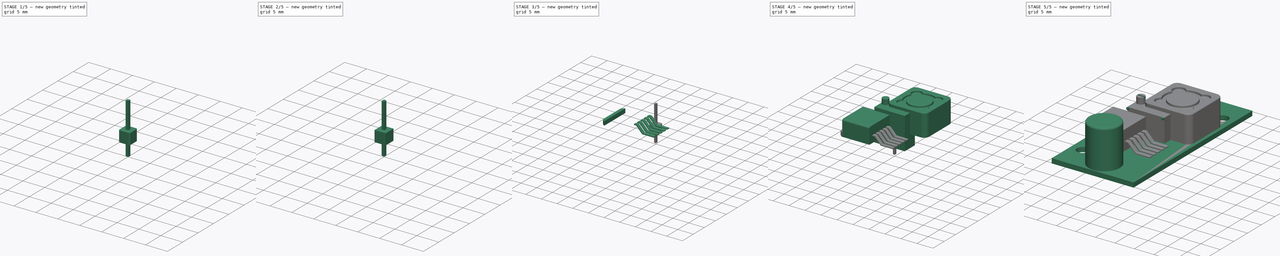
[diagram: build sequence overview — one tinted view per stage of 5, left to right]
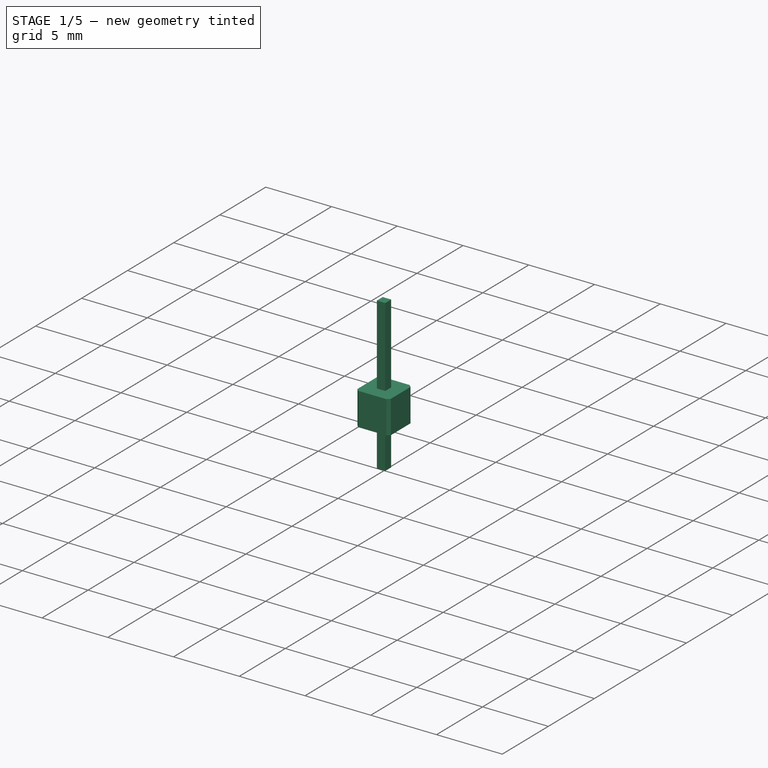
[diagram: stage 1 of 5 — iso view after this stage's code; geometry added in this stage tinted green]
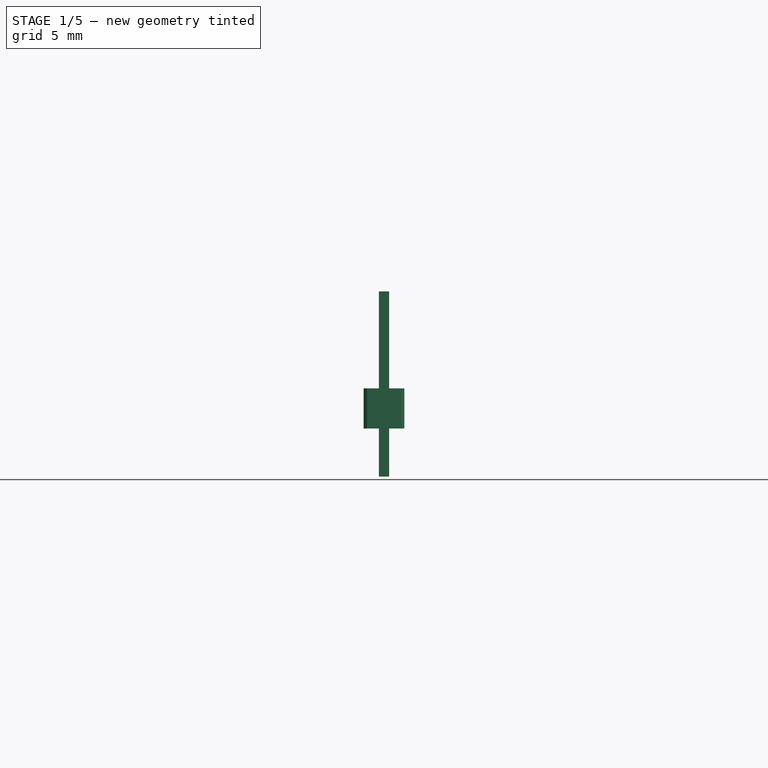
[diagram: stage 1 of 5 — front view after this stage's code; geometry added in this stage tinted green]
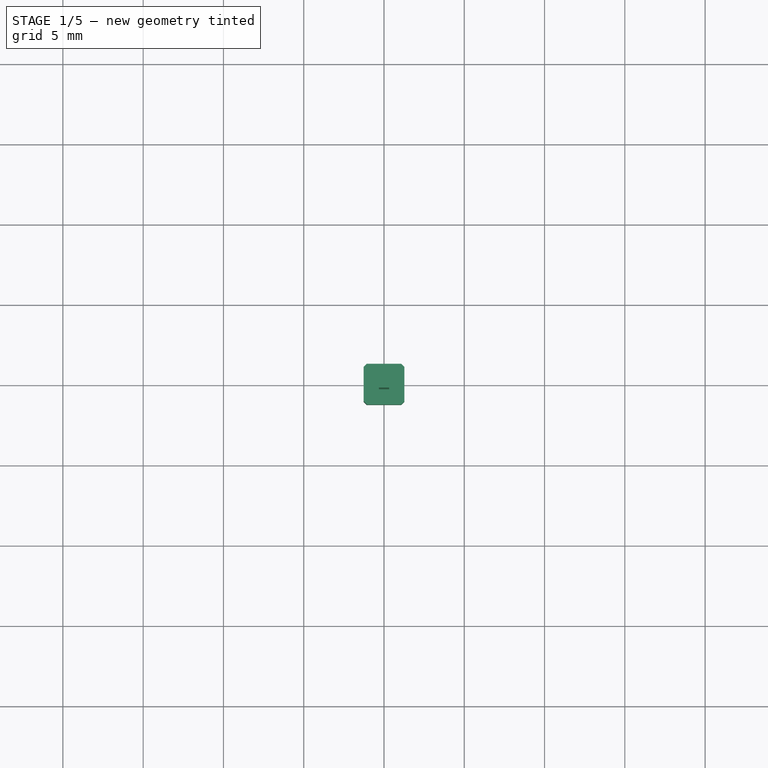
[diagram: stage 1 of 5 — top view after this stage's code; geometry added in this stage tinted green]
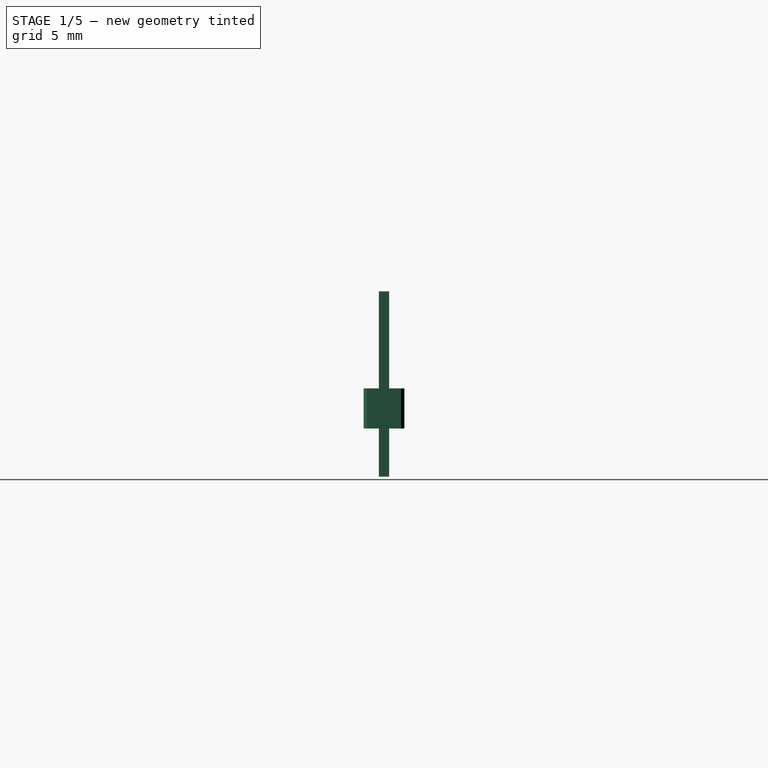
[diagram: stage 1 of 5 — right view after this stage's code; geometry added in this stage tinted green]
FCSTD DOCUMENT  (FreeCAD 0.18R4 (GitTag))
Label: LM2596S
License: CreativeCommons Attribution-NonCommercial
LicenseURL: http://creativecommons.org/licenses/by-nc/4.0/
objects: Sketcher::SketchObject×22, PartDesign::Pad×19, PartDesign::Body×17, PartDesign::Chamfer×13, App::Part×10, PartDesign::ShapeBinder×6, PartDesign::Fillet×5, PartDesign::Pocket×2, Part::FeaturePython×1
note: 106 computed .brp shape members not serialized (recipe doc carries the construction recipe); baked Part::Feature solids carry a one-line shape summary decoded from their .brp

FEATURE [PartDesign::Body] Body063  label="Pin Header Block002"
  Group = -> [Sketch210,Pad081,Chamfer017,Chamfer016]
  Origin = -> Origin090
  Tip = -> Chamfer016
FEATURE [App::Part] Part023  label="Pin Header #002"
  Group = -> [Body063,Body064]
  Origin = -> Origin089
  Placement = pos=(18,0,0) rot=(0,0,1;0rad)
FEATURE [Sketcher::SketchObject] Sketch211
  MapMode = 5
  Placement = pos=(0,0,0) rot=(1,0,0;1.5708rad)
  Support = -> [XZ_Plane086]
  sketch-geometry (4):
    g0: LineSegment StartX=-0.32 StartY=-3 StartZ=0 EndX=0.32 EndY=-3 EndZ=0
    g1: LineSegment StartX=0.32 StartY=-3 StartZ=0 EndX=0.32 EndY=8.54 EndZ=0
    g2: LineSegment StartX=0.32 StartY=8.54 StartZ=0 EndX=-0.32 EndY=8.54 EndZ=0
    g3: LineSegment StartX=-0.32 StartY=8.54 StartZ=0 EndX=-0.32 EndY=-3 EndZ=0
  constraints (11):
    c: Coincident(g0,g1)
    c: Coincident(g1,g2)
    c: Coincident(g2,g3)
    c: Coincident(g3,g0)
    c: Horizontal(g0)
    c: Vertical(g1)
    c: Vertical(g3)
    c: DistanceY(g-1,g1) = 8.54
    c: DistanceY(g0,g-1) = 3
    c: Symmetric(g2,g1,g-2)
    c: DistanceX(g2,g2) = 0.64
FEATURE [Sketcher::SketchObject] Sketch212
  MapMode = 5
  Support = -> [XY_Plane089]
  sketch-geometry (4):
    g0: LineSegment StartX=-1.27 StartY=-1.27 StartZ=0 EndX=1.27 EndY=-1.27 EndZ=0
    g1: LineSegment StartX=1.27 StartY=-1.27 StartZ=0 EndX=1.27 EndY=1.27 EndZ=0
    g2: LineSegment StartX=1.27 StartY=1.27 StartZ=0 EndX=-1.27 EndY=1.27 EndZ=0
    g3: LineSegment StartX=-1.27 StartY=1.27 StartZ=0 EndX=-1.27 EndY=-1.27 EndZ=0
  constraints (10):
    c: Coincident(g0,g1)
    c: Coincident(g1,g2)
    c: Coincident(g2,g3)
    c: Coincident(g3,g0)
    c: Horizontal(g0)
    c: Vertical(g3)
    c: Symmetric(g1,g2,g-2)
    c: Symmetric(g0,g1,g-1)
    c: Equal(g3,g2)
    c: DistanceX(g2,g2) = 2.54
FEATURE [PartDesign::Pad] Pad082
  Length = 0.32
  Length2 = 0.32
  Placement = pos=(0,0,0) rot=(1,0,0;1.5708rad)
  Profile = -> Sketch211
  Type = 4
FEATURE [PartDesign::Body] Body066  label="Pin Header Pin003"
  Group = -> [Sketch211,Pad082,Chamfer018]
  Origin = -> Origin094
  Tip = -> Chamfer018
FEATURE [PartDesign::Pad] Pad083
  Length = 2.5
  Length2 = 100
  Profile = -> Sketch212
  Type = 0
FEATURE [PartDesign::Chamfer] Chamfer020
  Base = -> Pad083 [Edge2,Edge1,Edge5,Edge8]
  BaseFeature = -> Pad083
  Size = 0.2
FEATURE [PartDesign::Body] Body065  label="Pin Header Block003"
  Group = -> [Sketch212,Pad083,Chamfer020,Chamfer019]
  Origin = -> Origin093
  Tip = -> Chamfer019
FEATURE [App::Part] Part024  label="Pin Header #003"
  Group = -> [Body065,Body066]
  Origin = -> Origin092
  Placement = pos=(0,40.5,0) rot=(0,0,1;0rad)
FEATURE [Sketcher::SketchObject] Sketch213
  MapMode = 5
  Placement = pos=(0,0,0) rot=(1,0,0;1.5708rad)
  Support = -> [XZ_Plane089]
  sketch-geometry (4):
    g0: LineSegment StartX=-0.32 StartY=-3 StartZ=0 EndX=0.32 EndY=-3 EndZ=0
    g1: LineSegment StartX=0.32 StartY=-3 StartZ=0 EndX=0.32 EndY=8.54 EndZ=0
    g2: LineSegment StartX=0.32 StartY=8.54 StartZ=0 EndX=-0.32 EndY=8.54 EndZ=0
    g3: LineSegment StartX=-0.32 StartY=8.54 StartZ=0 EndX=-0.32 EndY=-3 EndZ=0
  constraints (11):
    c: Coincident(g0,g1)
    c: Coincident(g1,g2)
    c: Coincident(g2,g3)
    c: Coincident(g3,g0)
    c: Horizontal(g0)
    c: Vertical(g1)
    c: Vertical(g3)
    c: DistanceY(g-1,g1) = 8.54
    c: DistanceY(g0,g-1) = 3
    c: Symmetric(g2,g1,g-2)
    c: DistanceX(g2,g2) = 0.64
FEATURE [Sketcher::SketchObject] Sketch214
  MapMode = 5
  Support = -> [XY_Plane092]
  sketch-geometry (4):
    g0: LineSegment StartX=-1.27 StartY=-1.27 StartZ=0 EndX=1.27 EndY=-1.27 EndZ=0
    g1: LineSegment StartX=1.27 StartY=-1.27 StartZ=0 EndX=1.27 EndY=1.27 EndZ=0
    g2: LineSegment StartX=1.27 StartY=1.27 StartZ=0 EndX=-1.27 EndY=1.27 EndZ=0
    g3: LineSegment StartX=-1.27 StartY=1.27 StartZ=0 EndX=-1.27 EndY=-1.27 EndZ=0
  constraints (10):
    c: Coincident(g0,g1)
    c: Coincident(g1,g2)
    c: Coincident(g2,g3)
    c: Coincident(g3,g0)
    c: Horizontal(g0)
    c: Vertical(g3)
    c: Symmetric(g1,g2,g-2)
    c: Symmetric(g0,g1,g-1)
    c: Equal(g3,g2)
    c: DistanceX(g2,g2) = 2.54
FEATURE [PartDesign::Pad] Pad084
  Length = 0.32
  Length2 = 0.32
  Placement = pos=(0,0,0) rot=(1,0,0;1.5708rad)
  Profile = -> Sketch213
  Type = 4
FEATURE [PartDesign::Chamfer] Chamfer021
  Base = -> Pad084 [Face3,Face1]
  BaseFeature = -> Pad084
  Placement = pos=(0,0,0) rot=(1,0,0;1.5708rad)
  Size = 0.16
FEATURE [PartDesign::Body] Body068  label="Pin Header Pin004"
  Group = -> [Sketch213,Pad084,Chamfer021]
  Origin = -> Origin097
  Tip = -> Chamfer021
FEATURE [PartDesign::Pad] Pad085
  Length = 2.5
  Length2 = 100
  Profile = -> Sketch214
  Type = 0
FEATURE [PartDesign::Chamfer] Chamfer023
  Base = -> Pad085 [Edge2,Edge1,Edge5,Edge8]
  BaseFeature = -> Pad085
  Size = 0.2
FEATURE [PartDesign::Chamfer] Chamfer022
  Base = -> Chamfer023 [Face5,Face2]
  BaseFeature = -> Chamfer023
  Size = 0.05
FEATURE [PartDesign::Body] Body067  label="Pin Header Block004"
  Group = -> [Sketch214,Pad085,Chamfer023,Chamfer022]
  Origin = -> Origin096
  Tip = -> Chamfer022
FEATURE [App::Part] Part025  label="Pin Header #004"
  Group = -> [Body067,Body068]
  Origin = -> Origin095
  Placement = pos=(18,40.5,0) rot=(0,0,1;0rad)
FEATURE [App::Part] Part022  label="Pins"
  Group = -> [Part010,Part023,Part024,Part025]
  Origin = -> Origin088
  Placement = pos=(-9,-20.25,4) rot=(0,0,1;0rad)
FEATURE [App::Part] Part  label="LM2596S DC Converter"
  Group = -> [Body,Part001,Part019,Body059,Part020,Part022]
  Origin = -> Origin
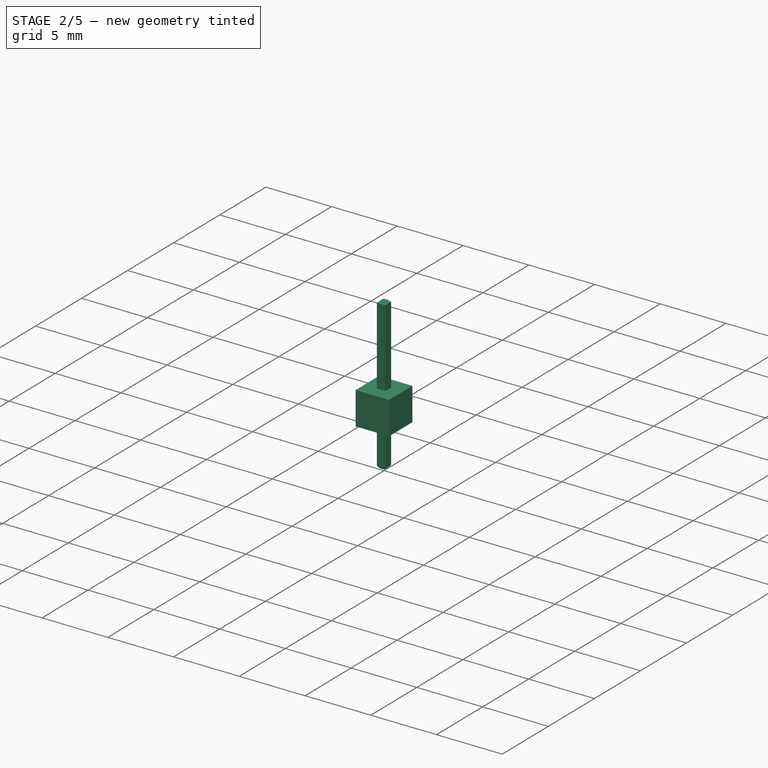
[diagram: stage 2 of 5 — iso view after this stage's code; geometry added in this stage tinted green]
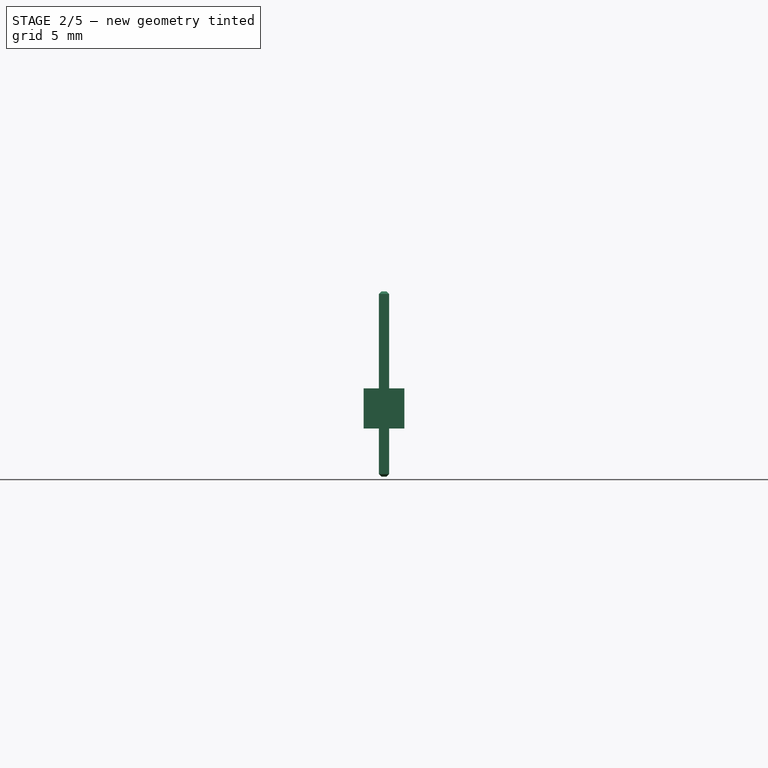
[diagram: stage 2 of 5 — front view after this stage's code; geometry added in this stage tinted green]
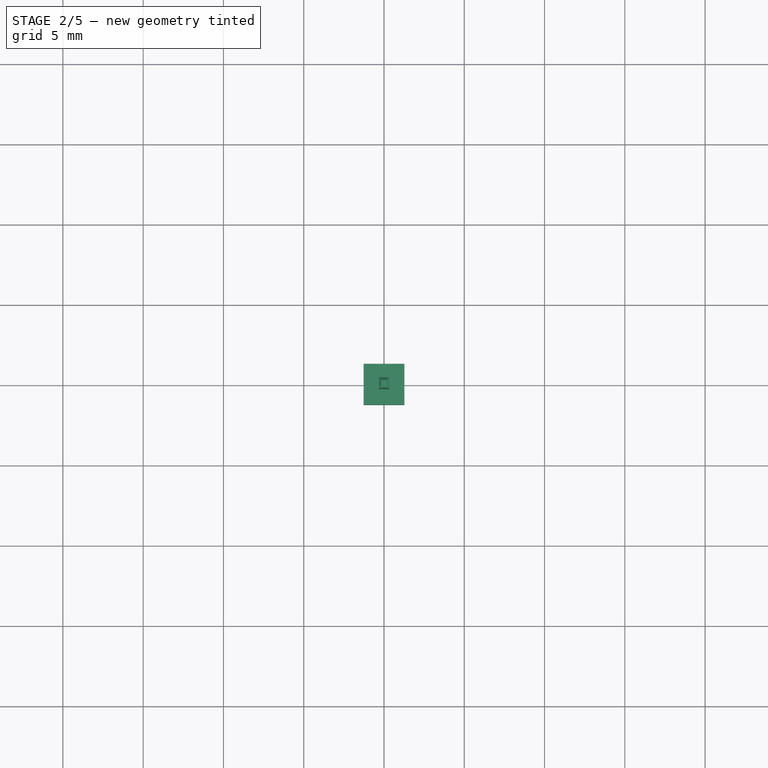
[diagram: stage 2 of 5 — top view after this stage's code; geometry added in this stage tinted green]
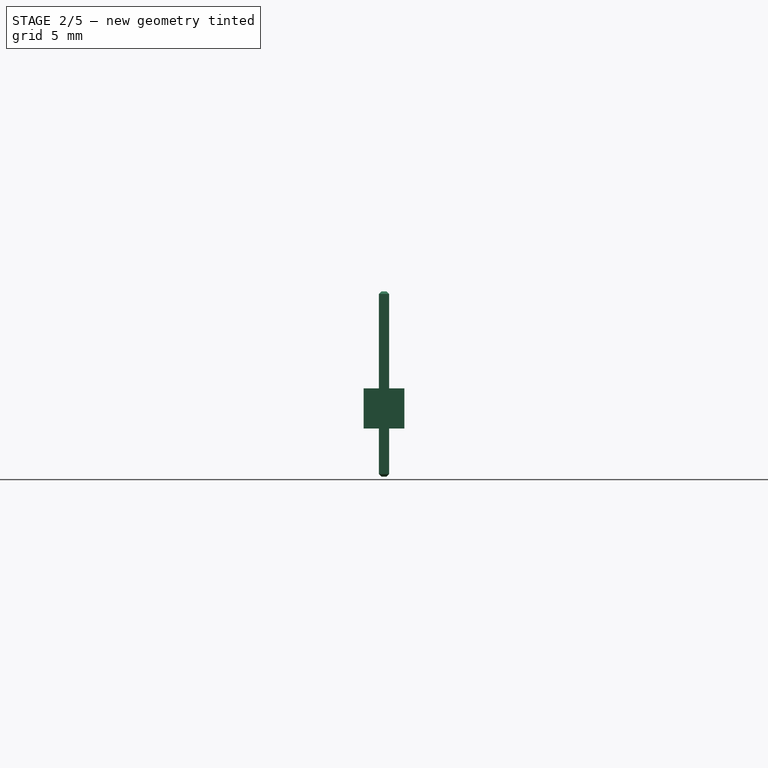
[diagram: stage 2 of 5 — right view after this stage's code; geometry added in this stage tinted green]
FEATURE [PartDesign::Body] Body034  label="Pin Header Pin001"
  Group = -> [Sketch207,Pad062,Chamfer012]
  Origin = -> Origin050
  Tip = -> Chamfer012
FEATURE [PartDesign::Pad] Pad063
  Length = 2.5
  Length2 = 100
  Profile = -> Sketch208
  Type = 0
FEATURE [PartDesign::Body] Body035  label="Pin Header Block001"
  Group = -> [Sketch208,Pad063,Chamfer014,Chamfer013]
  Origin = -> Origin052
  Tip = -> Chamfer013
FEATURE [App::Part] Part010  label="Pin Header #001"
  Group = -> [Body035,Body034]
  Origin = -> Origin051
FEATURE [Sketcher::SketchObject] Sketch209
  MapMode = 5
  Placement = pos=(0,0,0) rot=(1,0,0;1.5708rad)
  Support = -> [XZ_Plane083]
  sketch-geometry (4):
    g0: LineSegment StartX=-0.32 StartY=-3 StartZ=0 EndX=0.32 EndY=-3 EndZ=0
    g1: LineSegment StartX=0.32 StartY=-3 StartZ=0 EndX=0.32 EndY=8.54 EndZ=0
    g2: LineSegment StartX=0.32 StartY=8.54 StartZ=0 EndX=-0.32 EndY=8.54 EndZ=0
    g3: LineSegment StartX=-0.32 StartY=8.54 StartZ=0 EndX=-0.32 EndY=-3 EndZ=0
  constraints (11):
    c: Coincident(g0,g1)
    c: Coincident(g1,g2)
    c: Coincident(g2,g3)
    c: Coincident(g3,g0)
    c: Horizontal(g0)
    c: Vertical(g1)
    c: Vertical(g3)
    c: DistanceY(g-1,g1) = 8.54
    c: DistanceY(g0,g-1) = 3
    c: Symmetric(g2,g1,g-2)
    c: DistanceX(g2,g2) = 0.64
FEATURE [Sketcher::SketchObject] Sketch210
  MapMode = 5
  Support = -> [XY_Plane086]
  sketch-geometry (4):
    g0: LineSegment StartX=-1.27 StartY=-1.27 StartZ=0 EndX=1.27 EndY=-1.27 EndZ=0
    g1: LineSegment StartX=1.27 StartY=-1.27 StartZ=0 EndX=1.27 EndY=1.27 EndZ=0
    g2: LineSegment StartX=1.27 StartY=1.27 StartZ=0 EndX=-1.27 EndY=1.27 EndZ=0
    g3: LineSegment StartX=-1.27 StartY=1.27 StartZ=0 EndX=-1.27 EndY=-1.27 EndZ=0
  constraints (10):
    c: Coincident(g0,g1)
    c: Coincident(g1,g2)
    c: Coincident(g2,g3)
    c: Coincident(g3,g0)
    c: Horizontal(g0)
    c: Vertical(g3)
    c: Symmetric(g1,g2,g-2)
    c: Symmetric(g0,g1,g-1)
    c: Equal(g3,g2)
    c: DistanceX(g2,g2) = 2.54
FEATURE [PartDesign::Pad] Pad080
  Length = 0.32
  Length2 = 0.32
  Placement = pos=(0,0,0) rot=(1,0,0;1.5708rad)
  Profile = -> Sketch209
  Type = 4
FEATURE [PartDesign::Chamfer] Chamfer015
  Base = -> Pad080 [Face3,Face1]
  BaseFeature = -> Pad080
  Placement = pos=(0,0,0) rot=(1,0,0;1.5708rad)
  Size = 0.16
FEATURE [PartDesign::Body] Body064  label="Pin Header Pin002"
  Group = -> [Sketch209,Pad080,Chamfer015]
  Origin = -> Origin091
  Tip = -> Chamfer015
FEATURE [PartDesign::Pad] Pad081
  Length = 2.5
  Length2 = 100
  Profile = -> Sketch210
  Type = 0
FEATURE [PartDesign::Chamfer] Chamfer017
  Base = -> Pad081 [Edge2,Edge1,Edge5,Edge8]
  BaseFeature = -> Pad081
  Size = 0.2
FEATURE [PartDesign::Chamfer] Chamfer016
  Base = -> Chamfer017 [Face5,Face2]
  BaseFeature = -> Chamfer017
  Size = 0.05
FEATURE [PartDesign::Chamfer] Chamfer018
  Base = -> Pad082 [Face3,Face1]
  BaseFeature = -> Pad082
  Placement = pos=(0,0,0) rot=(1,0,0;1.5708rad)
  Size = 0.16
FEATURE [PartDesign::Chamfer] Chamfer019
  Base = -> Chamfer020 [Face5,Face2]
  BaseFeature = -> Chamfer020
  Size = 0.05
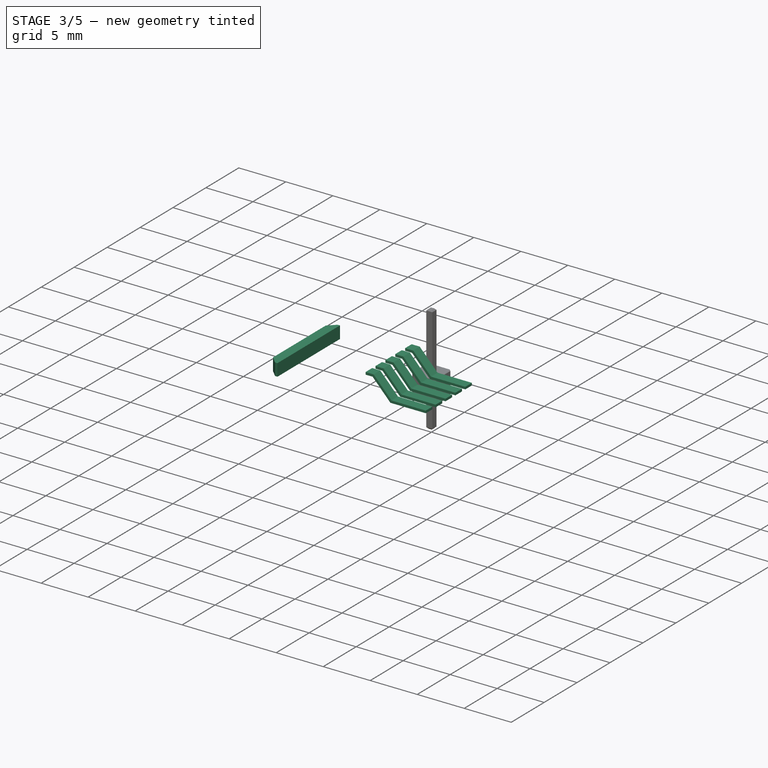
[diagram: stage 3 of 5 — iso view after this stage's code; geometry added in this stage tinted green]
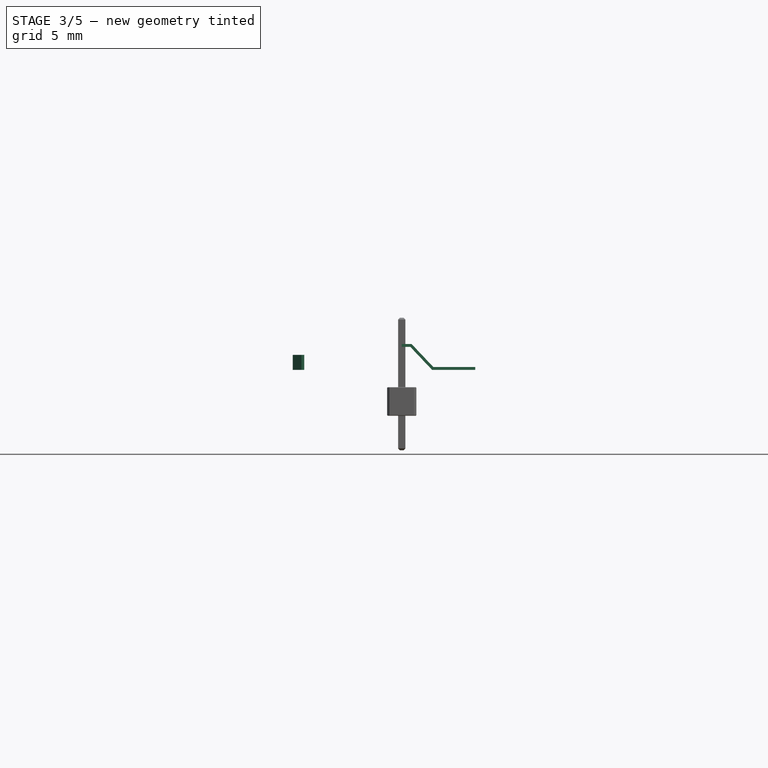
[diagram: stage 3 of 5 — front view after this stage's code; geometry added in this stage tinted green]
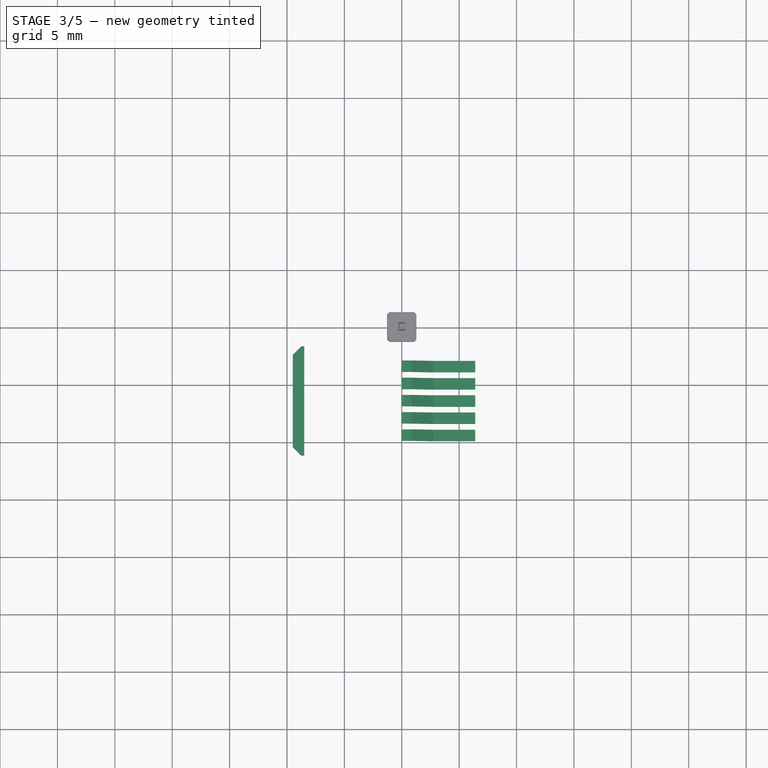
[diagram: stage 3 of 5 — top view after this stage's code; geometry added in this stage tinted green]
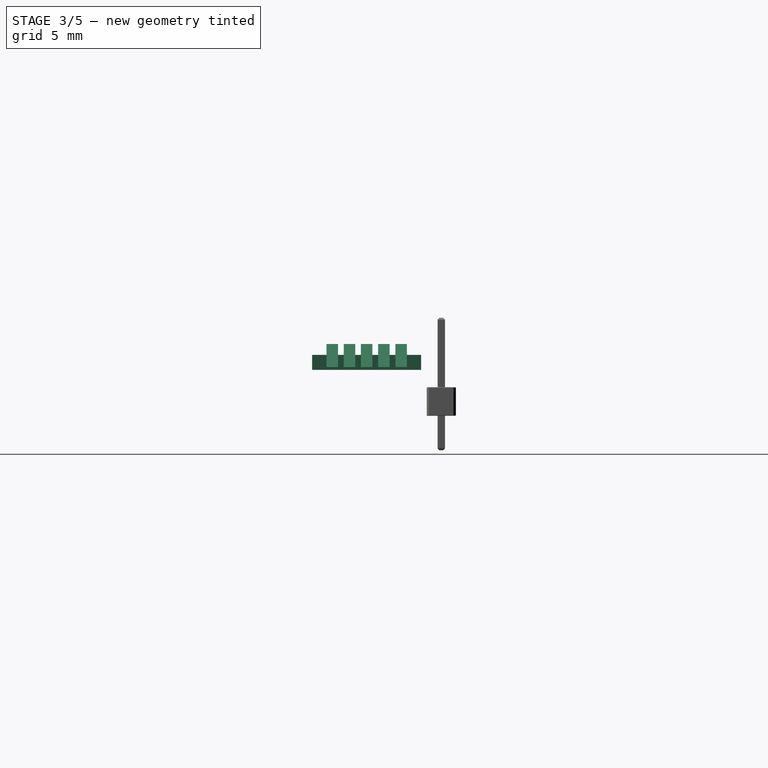
[diagram: stage 3 of 5 — right view after this stage's code; geometry added in this stage tinted green]
FEATURE [Sketcher::SketchObject] Sketch018
  MapMode = 5
  Placement = pos=(-8.5,0,1.2) rot=(0.57735,-0.57735,-0.57735;2.0944rad)
  Support = -> [Fillet004]
FEATURE [PartDesign::Body] Body060  label="LM2596S Body"
  Group = -> [CopyPad003,Sketch017,Pad077,Fillet004,Sketch018]
  Origin = -> Origin083
  Tip = -> Fillet004
FEATURE [PartDesign::ShapeBinder] CopyFillet004
  Placement = pos=(0,0,1.2) rot=(0,0,1;0rad)
  TraceSupport = false
FEATURE [Sketcher::SketchObject] Sketch019
  MapMode = 5
  Placement = pos=(-8.5,0,1.2) rot=(0.57735,-0.57735,-0.57735;2.0944rad)
  Support = -> [CopyFillet004]
  sketch-geometry (4):
    g0: LineSegment StartX=1.75 StartY=2.8 StartZ=0 EndX=11.25 EndY=2.8 EndZ=0
    g1: LineSegment StartX=11.25 StartY=2.8 StartZ=0 EndX=11.25 EndY=4.10468 EndZ=0
    g2: LineSegment StartX=11.25 StartY=4.10468 StartZ=0 EndX=1.75 EndY=4.10468 EndZ=0
    g3: LineSegment StartX=1.75 StartY=4.10468 StartZ=0 EndX=1.75 EndY=2.8 EndZ=0
  constraints (11):
    c: Coincident(g0,g1)
    c: Coincident(g1,g2)
    c: Coincident(g2,g3)
    c: Coincident(g3,g0)
    c: Horizontal(g0)
    c: Horizontal(g2)
    c: Vertical(g1)
    c: Vertical(g3)
    c: DistanceY(g-1,g0) = 2.8
    c: DistanceX(g-1,g0) = 1.75
    c: DistanceX(g2,g2) = 9.5
FEATURE [PartDesign::Pad] Pad078
  Length = 1
  Length2 = 100
  Placement = pos=(0,0,1.2) rot=(0,0,1;0rad)
  Profile = -> Sketch019
  Type = 0
FEATURE [PartDesign::Chamfer] Chamfer
  Base = -> Pad078 [Edge7,Edge12]
  BaseFeature = -> Pad078
  Placement = pos=(0,0,1.2) rot=(0,0,1;0rad)
  Size = 0.75
FEATURE [PartDesign::Body] Body061  label="Thermal"
  Group = -> [CopyFillet004,Sketch019,Pad078,Chamfer]
  Origin = -> Origin085
  Tip = -> Chamfer
FEATURE [PartDesign::ShapeBinder] CopyFillet004001
  Placement = pos=(0,0,1.2) rot=(0,0,1;0rad)
  TraceSupport = false
FEATURE [Sketcher::SketchObject] Sketch020
  MapMode = 5
  Placement = pos=(0,-11.25,1.2) rot=(1,0,0;1.5708rad)
  Support = -> [CopyFillet004001]
  sketch-geometry (9):
    g0: LineSegment StartX=0 StartY=5.05 StartZ=0 EndX=0.857625 EndY=5.05 EndZ=0
    g1: LineSegment StartX=0.857625 StartY=5.05 StartZ=0 EndX=2.75 EndY=3.05 EndZ=0
    g2: LineSegment StartX=2.75 StartY=3.05 StartZ=0 EndX=6.40465 EndY=3.05 EndZ=0
    g3: LineSegment StartX=6.40465 StartY=3.05 StartZ=0 EndX=6.40465 EndY=2.8 EndZ=0
    g4: LineSegment StartX=6.40465 StartY=2.8 StartZ=0 EndX=2.64237 EndY=2.8 EndZ=0
    g5: LineSegment StartX=2.64237 StartY=2.8 StartZ=0 EndX=0.75 EndY=4.8 EndZ=0
    g6: LineSegment StartX=0.75 StartY=4.8 StartZ=0 EndX=0 EndY=4.8 EndZ=0
    g7: LineSegment StartX=0 StartY=4.8 StartZ=0 EndX=0 EndY=5.05 EndZ=0
    g8: LineSegment [constr] StartX=1.08256 StartY=4.44853 StartZ=0 EndX=1.26415 EndY=4.62035 EndZ=0
  constraints (26):
    c: PointOnObject(g0,g-2)
    c: Horizontal(g0)
    c: Coincident(g0,g1)
    c: Coincident(g1,g2)
    c: Horizontal(g2)
    c: Coincident(g2,g3)
    c: Vertical(g3)
    c: Coincident(g3,g4)
    c: Horizontal(g4)
    c: Coincident(g4,g5)
    c: Coincident(g5,g6)
    c: Horizontal(g6)
    c: Coincident(g6,g7)
    c: Coincident(g7,g0)
    c: Vertical(g7)
    c: Equal(g7,g3)
    c: PointOnObject(g8,g5)
    c: PointOnObject(g8,g1)
    c: Parallel(g5,g1)
    c: Perpendicular(g5,g8)
    c: Equal(g8,g7)
    c: DistanceY(g3,g3) = 0.25
    c: DistanceY(g-1,g3) = 2.8
    c: DistanceY(g3,g6) = 2
    c: DistanceX(g5,g1) = 2
    c: DistanceX(g6,g6) = 0.75
FEATURE [PartDesign::Pad] Pad079
  Length = 1
  Length2 = 100
  Placement = pos=(0,0,1.2) rot=(0,0,1;0rad)
  Profile = -> Sketch020
  Type = 0
FEATURE [PartDesign::Body] Body062  label="LS2596S Pin"
  Group = -> [CopyFillet004001,Sketch020,Pad079]
  Origin = -> Origin087
  Placement = pos=(0,2.25,0) rot=(0,0,1;0rad)
  Tip = -> Pad079
FEATURE [Part::FeaturePython] Array  # Draft array (typed FeaturePython)
  Angle = 360
  ArrayType = 0
  Axis = (0,0,1)
  Base = -> Body062
  Center = (0,0,0)
  Fuse = false
  IntervalAxis = (0,0,0)
  IntervalX = (1,0,0)
  IntervalY = (0,1.5,0)
  IntervalZ = (0,0,1)
  NumberPolar = 1
  NumberX = 1
  NumberY = 5
  NumberZ = 1
FEATURE [App::Part] Part021  label="LS2596S Pins"
  Group = -> [Body062,Array]
  Origin = -> Origin086
FEATURE [App::Part] Part020  label="LM2596S Chip"
  Group = -> [Body060,Body061,Part021]
  Origin = -> Origin084
FEATURE [Sketcher::SketchObject] Sketch207
  MapMode = 5
  Placement = pos=(0,0,0) rot=(1,0,0;1.5708rad)
  Support = -> [XZ_Plane050]
  sketch-geometry (4):
    g0: LineSegment StartX=-0.32 StartY=-3 StartZ=0 EndX=0.32 EndY=-3 EndZ=0
    g1: LineSegment StartX=0.32 StartY=-3 StartZ=0 EndX=0.32 EndY=8.54 EndZ=0
    g2: LineSegment StartX=0.32 StartY=8.54 StartZ=0 EndX=-0.32 EndY=8.54 EndZ=0
    g3: LineSegment StartX=-0.32 StartY=8.54 StartZ=0 EndX=-0.32 EndY=-3 EndZ=0
  constraints (11):
    c: Coincident(g0,g1)
    c: Coincident(g1,g2)
    c: Coincident(g2,g3)
    c: Coincident(g3,g0)
    c: Horizontal(g0)
    c: Vertical(g1)
    c: Vertical(g3)
    c: DistanceY(g-1,g1) = 8.54
    c: DistanceY(g0,g-1) = 3
    c: Symmetric(g2,g1,g-2)
    c: DistanceX(g2,g2) = 0.64
FEATURE [Sketcher::SketchObject] Sketch208
  MapMode = 5
  Support = -> [XY_Plane052]
  sketch-geometry (4):
    g0: LineSegment StartX=-1.27 StartY=-1.27 StartZ=0 EndX=1.27 EndY=-1.27 EndZ=0
    g1: LineSegment StartX=1.27 StartY=-1.27 StartZ=0 EndX=1.27 EndY=1.27 EndZ=0
    g2: LineSegment StartX=1.27 StartY=1.27 StartZ=0 EndX=-1.27 EndY=1.27 EndZ=0
    g3: LineSegment StartX=-1.27 StartY=1.27 StartZ=0 EndX=-1.27 EndY=-1.27 EndZ=0
  constraints (10):
    c: Coincident(g0,g1)
    c: Coincident(g1,g2)
    c: Coincident(g2,g3)
    c: Coincident(g3,g0)
    c: Horizontal(g0)
    c: Vertical(g3)
    c: Symmetric(g1,g2,g-2)
    c: Symmetric(g0,g1,g-1)
    c: Equal(g3,g2)
    c: DistanceX(g2,g2) = 2.54
FEATURE [PartDesign::Pad] Pad062
  Length = 0.32
  Length2 = 0.32
  Placement = pos=(0,0,0) rot=(1,0,0;1.5708rad)
  Profile = -> Sketch207
  Type = 4
FEATURE [PartDesign::Chamfer] Chamfer012
  Base = -> Pad062 [Face3,Face1]
  BaseFeature = -> Pad062
  Placement = pos=(0,0,0) rot=(1,0,0;1.5708rad)
  Size = 0.16
FEATURE [PartDesign::Chamfer] Chamfer014
  Base = -> Pad063 [Edge2,Edge1,Edge5,Edge8]
  BaseFeature = -> Pad063
  Size = 0.2
FEATURE [PartDesign::Chamfer] Chamfer013
  Base = -> Chamfer014 [Face5,Face2]
  BaseFeature = -> Chamfer014
  Size = 0.05
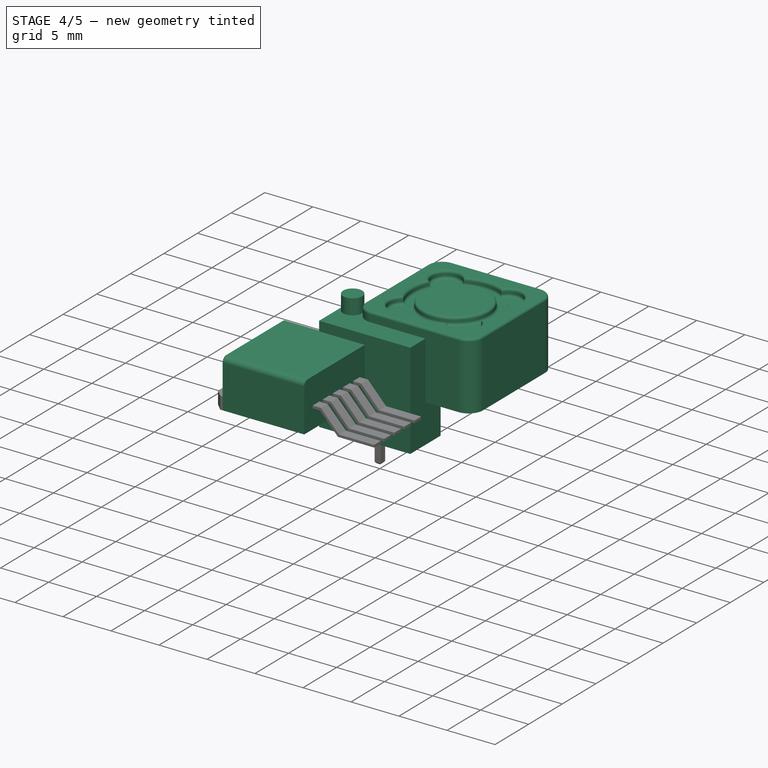
[diagram: stage 4 of 5 — iso view after this stage's code; geometry added in this stage tinted green]
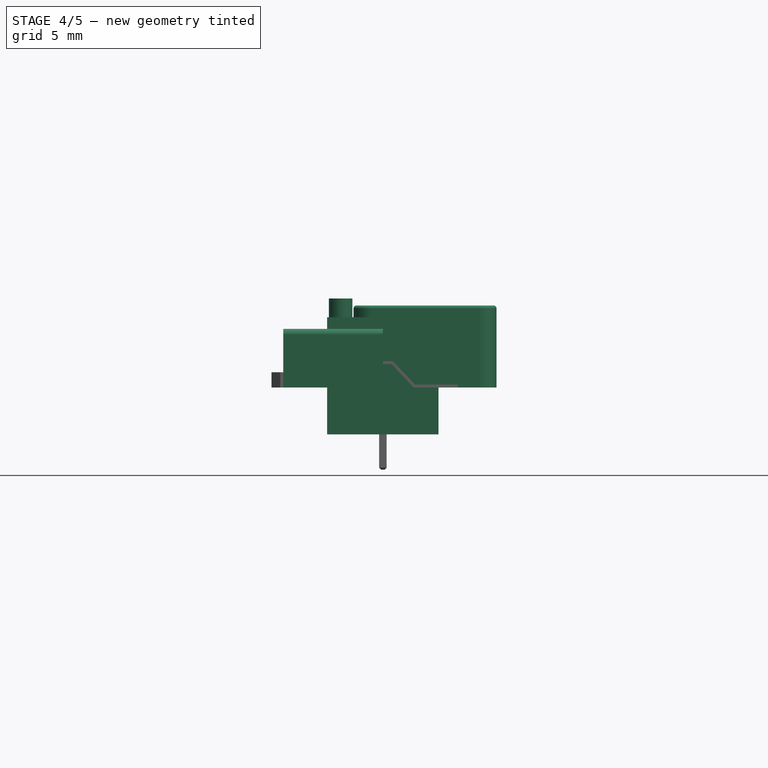
[diagram: stage 4 of 5 — front view after this stage's code; geometry added in this stage tinted green]
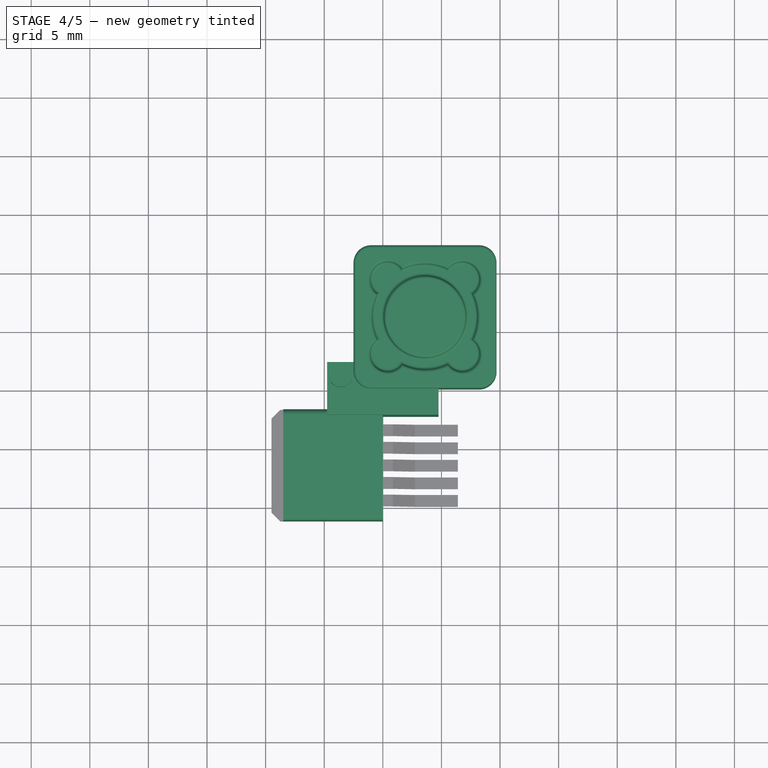
[diagram: stage 4 of 5 — top view after this stage's code; geometry added in this stage tinted green]
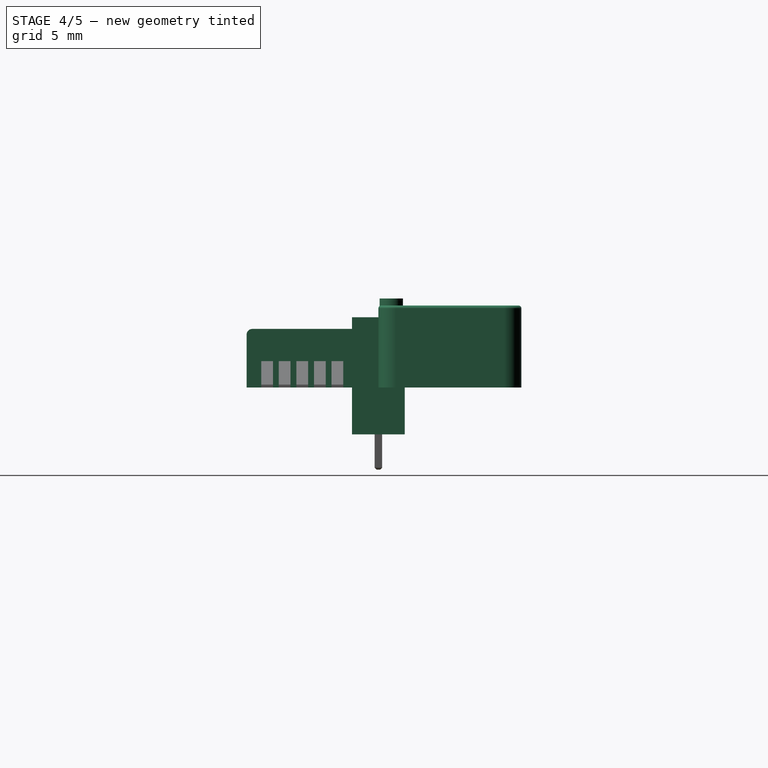
[diagram: stage 4 of 5 — right view after this stage's code; geometry added in this stage tinted green]
FEATURE [PartDesign::Body] Body002  label="Capacitor #2"
  Group = -> [CopyPad001,Sketch014,Pad002,Fillet001]
  Origin = -> Origin004
  Placement = pos=(0,0,0) rot=(0,0,1;3.14159rad)
  Tip = -> Fillet001
FEATURE [App::Part] Part001  label="Capacitors"
  Group = -> [Body001,Body002]
  Origin = -> Origin003
FEATURE [Sketcher::SketchObject] Sketch008
  MapMode = 5
  Support = -> [XY_Plane076]
  sketch-geometry (4):
    g0: LineSegment StartX=-4.75 StartY=2.25 StartZ=0 EndX=4.75 EndY=2.25 EndZ=0
    g1: LineSegment StartX=4.75 StartY=2.25 StartZ=0 EndX=4.75 EndY=-2.25 EndZ=0
    g2: LineSegment StartX=4.75 StartY=-2.25 StartZ=0 EndX=-4.75 EndY=-2.25 EndZ=0
    g3: LineSegment StartX=-4.75 StartY=-2.25 StartZ=0 EndX=-4.75 EndY=2.25 EndZ=0
  constraints (10):
    c: Coincident(g0,g1)
    c: Coincident(g1,g2)
    c: Coincident(g2,g3)
    c: Coincident(g3,g0)
    c: Horizontal(g2)
    c: Vertical(g3)
    c: Symmetric(g0,g0,g-2)
    c: Symmetric(g0,g1,g-1)
    c: DistanceX(g0,g0) = 9.5
    c: DistanceY(g3,g3) = 4.5
FEATURE [PartDesign::Pad] Pad072  label="3296 Potentiometer Baseblock"
  Length = 10
  Length2 = 100
  Profile = -> Sketch008
  Type = 0
FEATURE [PartDesign::Body] Body057  label="Shell"
  Group = -> [Sketch008,Pad072,Sketch009,Pad075,Sketch012,Pad006]
  Origin = -> Origin072
  Tip = -> Pad006
FEATURE [Sketcher::SketchObject] Sketch010
  AttachmentOffset = pos=(0,0,10) rot=(0,0,1;0rad)
  MapMode = 5
  Placement = pos=(0,0,10) rot=(0,0,1;0rad)
  Support = -> [XY_Plane078]
  sketch-geometry (1):
    g0: Circle CenterX=-3.6 CenterY=1.1 CenterZ=0 NormalX=0 NormalY=0 NormalZ=1 AngleXU=0 Radius=1
  constraints (3):
    c: Radius(g0) = 1
    c: DistanceX(g0,g-1) = 3.6
    c: DistanceY(g-1,g0) = 1.1
FEATURE [PartDesign::Pad] Pad073  label="3296 Screwhead Baseblock"
  Length = 1.6
  Length2 = 100
  Profile = -> Sketch010
  Type = 0
FEATURE [PartDesign::Body] Body058  label="Screwhead"
  Group = -> [Sketch010,Pad073,Sketch011,Pocket109]
  Origin = -> Origin079
  Tip = -> Pocket109
FEATURE [App::Part] Part019  label="3296 Potentiometer CC"
  Group = -> [Body057,Body058]
  Origin = -> Origin081
  Placement = pos=(-8.25,9.5,4.5) rot=(0,0,1;1.5708rad)
FEATURE [PartDesign::ShapeBinder] CopyPad002
  Placement = pos=(0,0,1.2) rot=(0,0,1;0rad)
  TraceSupport = false
FEATURE [Sketcher::SketchObject] Sketch015
  MapMode = 5
  Placement = pos=(0,0,4) rot=(0,0,1;0rad)
  Support = -> [CopyPad002]
  sketch-geometry (4):
    g0: LineSegment StartX=-2.5 StartY=0 StartZ=0 EndX=9.7 EndY=0 EndZ=0
    g1: LineSegment StartX=9.7 StartY=0 StartZ=0 EndX=9.7 EndY=12.2 EndZ=0
    g2: LineSegment StartX=9.7 StartY=12.2 StartZ=0 EndX=-2.5 EndY=12.2 EndZ=0
    g3: LineSegment StartX=-2.5 StartY=12.2 StartZ=0 EndX=-2.5 EndY=0 EndZ=0
  constraints (12):
    c: Coincident(g0,g1)
    c: Coincident(g1,g2)
    c: Coincident(g2,g3)
    c: Coincident(g3,g0)
    c: Horizontal(g0)
    c: Horizontal(g2)
    c: Vertical(g1)
    c: Vertical(g3)
    c: Equal(g3,g2)
    c: DistanceX(g2,g2) = 12.2
    c: PointOnObject(g0,g-1)
    c: DistanceX(g0,g-1) = 2.5
FEATURE [PartDesign::Pad] Pad076
  Length = 7
  Length2 = 100
  Placement = pos=(0,0,1.2) rot=(0,0,1;0rad)
  Profile = -> Sketch015
  Type = 0
FEATURE [Sketcher::SketchObject] Sketch016
  ExternalGeometry = -> [Pad076]
  MapMode = 5
  Placement = pos=(0,0,11) rot=(0,0,1;0rad)
  Support = -> [Pad076]
  sketch-geometry (14):
    g0: Circle [constr] CenterX=3.6 CenterY=6.1 CenterZ=0 NormalX=0 NormalY=0 NormalZ=1 AngleXU=0 Radius=4.5
    g1: LineSegment [constr] StartX=-2.5 StartY=12.2 StartZ=0 EndX=3.6 EndY=6.1 EndZ=0
    g2: LineSegment [constr] StartX=3.6 StartY=6.1 StartZ=0 EndX=9.7 EndY=12.2 EndZ=0
    g3: LineSegment [constr] StartX=3.6 StartY=6.1 StartZ=0 EndX=-2.5 EndY=0 EndZ=0
    g4: LineSegment [constr] StartX=3.6 StartY=6.1 StartZ=0 EndX=9.7 EndY=0 EndZ=0
    g5: ArcOfCircle CenterX=6.78198 CenterY=2.91802 CenterZ=0 NormalX=0 NormalY=0 NormalZ=1 AngleXU=0 Radius=1.5 StartAngle=3.75954 EndAngle=7.23603
    g6: ArcOfCircle CenterX=6.78198 CenterY=9.28198 CenterZ=0 NormalX=0 NormalY=0 NormalZ=1 AngleXU=0 Radius=1.5 StartAngle=5.33034 EndAngle=8.80683
    g7: ArcOfCircle CenterX=0.418019 CenterY=9.28198 CenterZ=0 NormalX=0 NormalY=0 NormalZ=1 AngleXU=0 Radius=1.5 StartAngle=0.61795 EndAngle=4.09444
    g8: ArcOfCircle CenterX=0.418019 CenterY=2.91802 CenterZ=0 NormalX=0 NormalY=0 NormalZ=1 AngleXU=0 Radius=1.5 StartAngle=2.18875 EndAngle=5.66524
    g9: ArcOfCircle CenterX=3.6 CenterY=6.1 CenterZ=0 NormalX=0 NormalY=0 NormalZ=1 AngleXU=0 Radius=4.5 StartAngle=2.69109 EndAngle=3.59209
    g10: ArcOfCircle CenterX=3.6 CenterY=6.1 CenterZ=0 NormalX=0 NormalY=0 NormalZ=1 AngleXU=0 Radius=4.5 StartAngle=1.12029 EndAngle=2.0213
    g11: ArcOfCircle CenterX=3.6 CenterY=6.1 CenterZ=0 NormalX=0 NormalY=0 NormalZ=1 AngleXU=0 Radius=4.5 StartAngle=5.83268 EndAngle=6.73369
    g12: ArcOfCircle CenterX=3.6 CenterY=6.1 CenterZ=0 NormalX=0 NormalY=0 NormalZ=1 AngleXU=0 Radius=4.5 StartAngle=4.26189 EndAngle=5.16289
    g13: Circle CenterX=3.6 CenterY=6.1 CenterZ=0 NormalX=0 NormalY=0 NormalZ=1 AngleXU=0 Radius=3.5
  constraints (41):
    c: Coincident(g1,g-4)
    c: Coincident(g1,g0)
    c: Coincident(g2,g0)
    c: Coincident(g2,g-3)
    c: Coincident(g3,g0)
    c: Coincident(g3,g-4)
    c: Equal(g2,g1)
    c: Equal(g1,g3)
    c: Coincident(g4,g0)
    c: Coincident(g4,g-5)
    c: PointOnObject(g5,g0)
    c: PointOnObject(g6,g0)
    c: PointOnObject(g7,g0)
    c: PointOnObject(g8,g0)
    c: PointOnObject(g7,g1)
    c: PointOnObject(g6,g2)
    c: PointOnObject(g5,g4)
    c: PointOnObject(g8,g3)
    c: Equal(g7,g6)
    c: Equal(g6,g5)
    c: Equal(g5,g8)
    c: Radius(g5) = 1.5
    c: Radius(g0) = 4.5
    c: PointOnObject(g7,g0)
    c: PointOnObject(g7,g0)
    c: PointOnObject(g6,g0)
    c: PointOnObject(g5,g0)
    c: Coincident(g9,g0)
    c: Coincident(g9,g7)
    c: Coincident(g9,g8)
    c: Coincident(g10,g9)
    c: Coincident(g10,g7)
    c: Coincident(g10,g6)
    c: Coincident(g11,g9)
    c: Coincident(g11,g6)
    c: Coincident(g11,g5)
    c: Coincident(g12,g9)
    c: Coincident(g12,g5)
    c: Coincident(g12,g8)
    c: Coincident(g13,g9)
    c: Radius(g13) = 3.5
FEATURE [PartDesign::Pocket] Pocket
  BaseFeature = -> Pad076
  Length = 0.75
  Length2 = 100
  Placement = pos=(0,0,1.2) rot=(0,0,1;0rad)
  Profile = -> Sketch016
  Type = 0
FEATURE [PartDesign::Fillet] Fillet002
  Base = -> Pocket [Edge2,Edge1,Edge8,Edge5]
  BaseFeature = -> Pocket
  Placement = pos=(0,0,1.2) rot=(0,0,1;0rad)
  Radius = 1.5
FEATURE [PartDesign::Fillet] Fillet003
  Base = -> Fillet002 [Face19,Face21,Face5]
  BaseFeature = -> Fillet002
  Placement = pos=(0,0,1.2) rot=(0,0,1;0rad)
  Radius = 0.25
FEATURE [PartDesign::Body] Body059  label="Coil"
  Group = -> [CopyPad002,Sketch015,Pad076,Sketch016,Pocket,Fillet002,Fillet003]
  Origin = -> Origin082
  Tip = -> Fillet003
FEATURE [PartDesign::ShapeBinder] CopyPad003
  Placement = pos=(0,0,1.2) rot=(0,0,1;0rad)
  TraceSupport = false
FEATURE [Sketcher::SketchObject] Sketch017
  MapMode = 5
  Placement = pos=(0,0,4) rot=(0,0,1;0rad)
  Support = -> [CopyPad003]
  sketch-geometry (4):
    g0: LineSegment StartX=-8.5 StartY=-11.25 StartZ=0 EndX=0 EndY=-11.25 EndZ=0
    g1: LineSegment StartX=0 StartY=-11.25 StartZ=0 EndX=0 EndY=-1.75 EndZ=0
    g2: LineSegment StartX=0 StartY=-1.75 StartZ=0 EndX=-8.5 EndY=-1.75 EndZ=0
    g3: LineSegment StartX=-8.5 StartY=-1.75 StartZ=0 EndX=-8.5 EndY=-11.25 EndZ=0
  constraints (12):
    c: Coincident(g0,g1)
    c: Coincident(g1,g2)
    c: Coincident(g2,g3)
    c: Coincident(g3,g0)
    c: Horizontal(g0)
    c: Horizontal(g2)
    c: Vertical(g1)
    c: Vertical(g3)
    c: DistanceY(g3,g3) = 9.5
    c: DistanceX(g2,g2) = 8.5
    c: PointOnObject(g1,g-2)
    c: DistanceY(g1,g-1) = 1.75
FEATURE [PartDesign::Pad] Pad077
  Length = 5
  Length2 = 100
  Placement = pos=(0,0,1.2) rot=(0,0,1;0rad)
  Profile = -> Sketch017
  Type = 0
FEATURE [PartDesign::Fillet] Fillet004
  Base = -> Pad077 [Edge4,Edge10]
  BaseFeature = -> Pad077
  Placement = pos=(0,0,1.2) rot=(0,0,1;0rad)
  Radius = 0.5
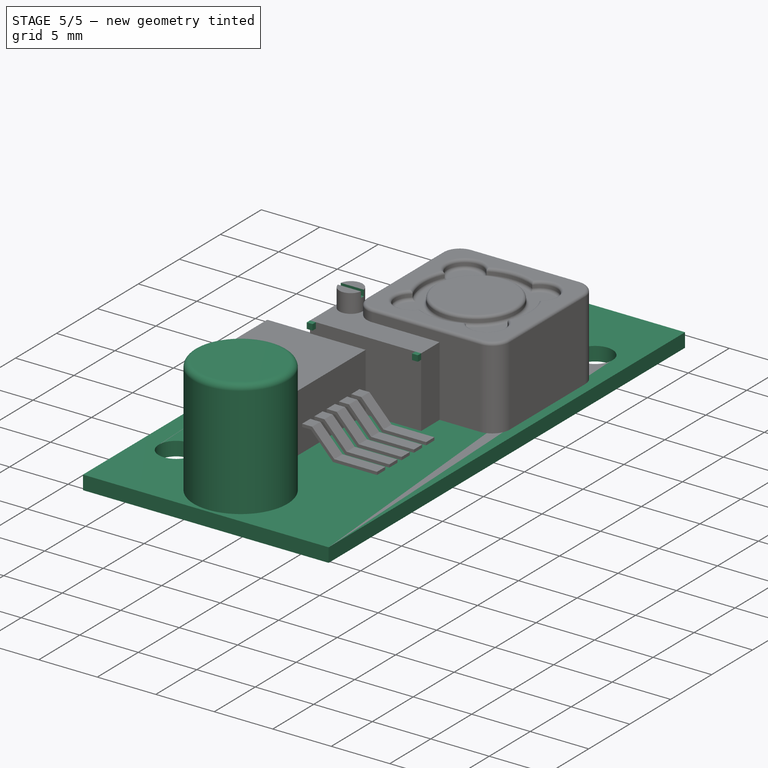
[diagram: stage 5 of 5 — iso view after this stage's code; geometry added in this stage tinted green]
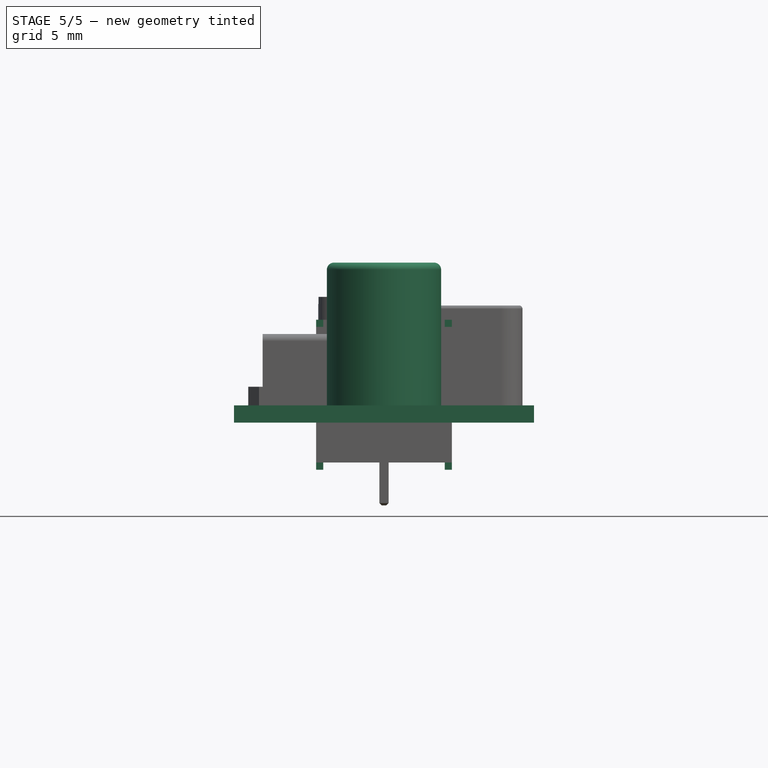
[diagram: stage 5 of 5 — front view after this stage's code; geometry added in this stage tinted green]
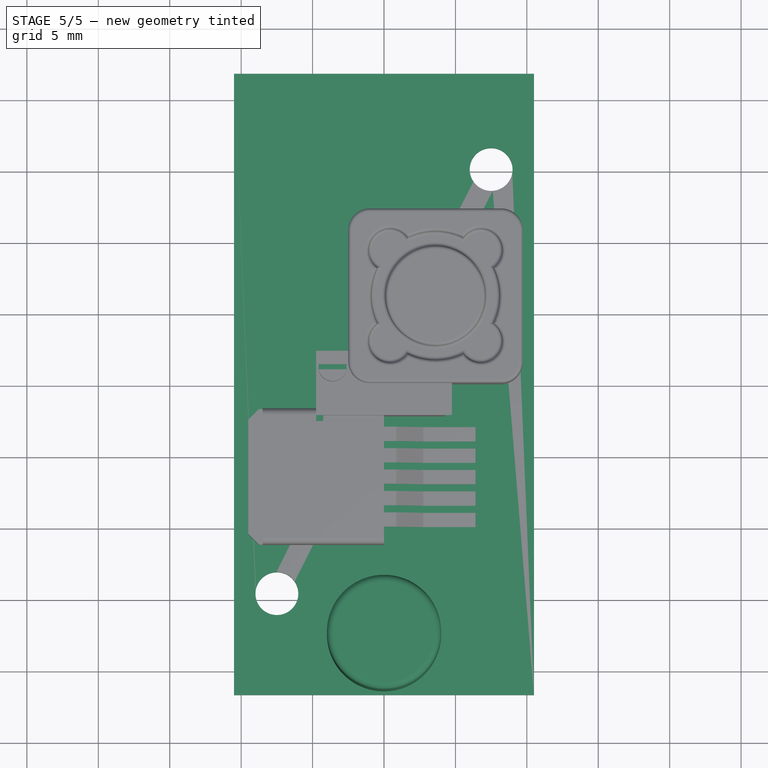
[diagram: stage 5 of 5 — top view after this stage's code; geometry added in this stage tinted green]
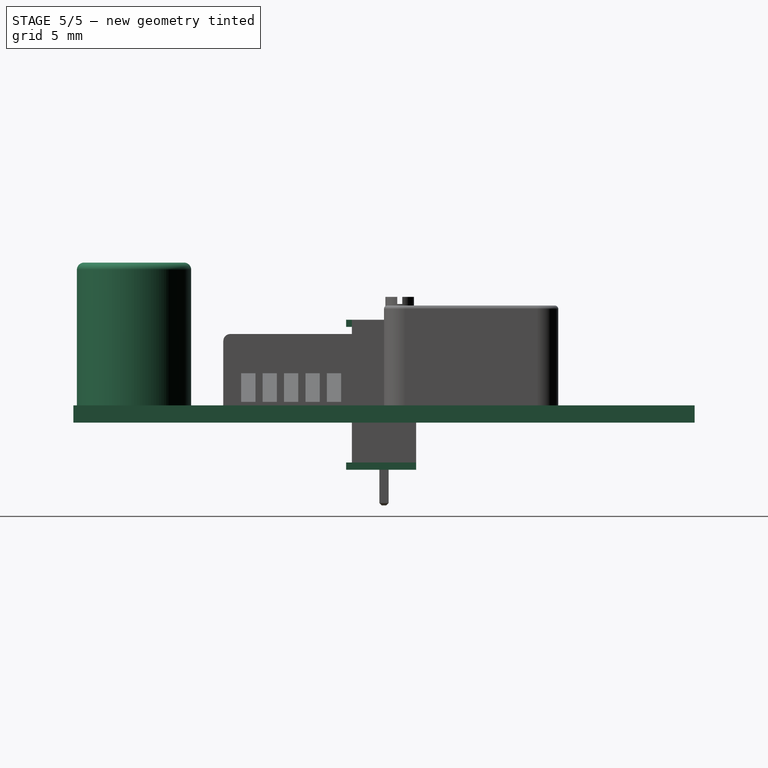
[diagram: stage 5 of 5 — right view after this stage's code; geometry added in this stage tinted green]
FEATURE [Sketcher::SketchObject] Sketch013  label="LM2596 - Top Layer"
  AttachmentOffset = pos=(0,0,2.8) rot=(0,0,1;0rad)
  MapMode = 5
  Placement = pos=(0,0,2.8) rot=(0,0,1;0rad)
  sketch-geometry (6):
    g0: LineSegment StartX=-10.5 StartY=21.75 StartZ=0 EndX=10.5 EndY=21.75 EndZ=0
    g1: LineSegment StartX=10.5 StartY=21.75 StartZ=0 EndX=10.5 EndY=-21.75 EndZ=0
    g2: LineSegment StartX=10.5 StartY=-21.75 StartZ=0 EndX=-10.5 EndY=-21.75 EndZ=0
    g3: LineSegment StartX=-10.5 StartY=-21.75 StartZ=0 EndX=-10.5 EndY=21.75 EndZ=0
    g4: Circle CenterX=-7.5 CenterY=-14.65 CenterZ=0 NormalX=0 NormalY=0 NormalZ=1 AngleXU=0 Radius=1.5
    g5: Circle CenterX=7.5 CenterY=15.05 CenterZ=0 NormalX=0 NormalY=0 NormalZ=1 AngleXU=0 Radius=1.5
  constraints (16):
    c: Coincident(g0,g1)
    c: Coincident(g1,g2)
    c: Coincident(g2,g3)
    c: Coincident(g3,g0)
    c: Horizontal(g0)
    c: DistanceX(g2,g2) = 21  'PCBX1'
    c: DistanceY(g1,g1) = 43.5  'PCBY1'
    c: Symmetric(g2,g1,g-2)
    c: Symmetric(g0,g1,g-1)
    c: Vertical(g3)
    c: DistanceY(g2,g4) = 7.1  'INY'
    c: DistanceX(g2,g4) = 3  'INX'
    c: DistanceY(g5,g0) = 6.7  'OUTY'
    c: DistanceX(g5,g0) = 3  'OUTX'
    c: Radius(g4) = 1.5  'R1'
    c: Equal(g4,g5)
FEATURE [PartDesign::Pad] Pad
  Length = 1.2
  Length2 = 100
  Placement = pos=(0,0,2.8) rot=(0,0,1;0rad)
  Profile = -> Sketch013
  Type = 0
FEATURE [PartDesign::Body] Body  label="LM2596S DC Converter PCB"
  Group = -> [Sketch013,Pad]
  Origin = -> Origin001
  Tip = -> Pad
FEATURE [PartDesign::ShapeBinder] CopyPad
  Placement = pos=(0,0,1.2) rot=(0,0,1;0rad)
  TraceSupport = false
FEATURE [Sketcher::SketchObject] Sketch
  MapMode = 5
  Placement = pos=(0,0,4) rot=(0,0,1;0rad)
  Support = -> [CopyPad]
  sketch-geometry (1):
    g0: Circle CenterX=0 CenterY=-17.5 CenterZ=0 NormalX=0 NormalY=0 NormalZ=1 AngleXU=0 Radius=4
  constraints (2):
    c: DistanceY(g0,g-1) = 17.5
    c: Radius(g0) = 4
FEATURE [PartDesign::Pad] Pad001
  Length = 10
  Length2 = 100
  Placement = pos=(0,0,1.2) rot=(0,0,1;0rad)
  Profile = -> Sketch
  Type = 0
FEATURE [PartDesign::Fillet] Fillet
  Base = -> Pad001 [Edge3]
  BaseFeature = -> Pad001
  Placement = pos=(0,0,1.2) rot=(0,0,1;0rad)
  Radius = 0.5
FEATURE [PartDesign::Body] Body001  label="Capacitor #1"
  Group = -> [CopyPad,Sketch,Pad001,Fillet]
  Origin = -> Origin002
  Tip = -> Fillet
FEATURE [PartDesign::ShapeBinder] CopyPad001
  Placement = pos=(0,0,1.2) rot=(0,0,1;0rad)
  TraceSupport = false
FEATURE [Sketcher::SketchObject] Sketch014
  MapMode = 5
  Placement = pos=(0,0,4) rot=(0,0,1;0rad)
  Support = -> [CopyPad001]
  sketch-geometry (1):
    g0: Circle CenterX=0 CenterY=-17.5 CenterZ=0 NormalX=0 NormalY=0 NormalZ=1 AngleXU=0 Radius=4
  constraints (2):
    c: DistanceY(g0,g-1) = 17.5
    c: Radius(g0) = 4
FEATURE [PartDesign::Pad] Pad002
  Length = 10
  Length2 = 100
  Placement = pos=(0,0,1.2) rot=(0,0,1;0rad)
  Profile = -> Sketch014
  Type = 0
FEATURE [PartDesign::Fillet] Fillet001
  Base = -> Pad002 [Edge3]
  BaseFeature = -> Pad002
  Placement = pos=(0,0,1.2) rot=(0,0,1;0rad)
  Radius = 0.5
FEATURE [Sketcher::SketchObject] Sketch009
  MapMode = 5
  Placement = pos=(0,-2.25,0) rot=(1,0,0;1.5708rad)
  Support = -> [Pad072]
  sketch-geometry (8):
    g0: LineSegment StartX=-4.75 StartY=10 StartZ=0 EndX=-4.25 EndY=10 EndZ=0
    g1: LineSegment StartX=-4.25 StartY=10 StartZ=0 EndX=-4.25 EndY=9.5 EndZ=0
    g2: LineSegment StartX=-4.25 StartY=9.5 StartZ=0 EndX=-4.75 EndY=9.5 EndZ=0
    g3: LineSegment StartX=-4.75 StartY=9.5 StartZ=0 EndX=-4.75 EndY=10 EndZ=0
    g4: LineSegment StartX=4.75 StartY=10 StartZ=0 EndX=4.25 EndY=10 EndZ=0
    g5: LineSegment StartX=4.25 StartY=10 StartZ=0 EndX=4.25 EndY=9.5 EndZ=0
    g6: LineSegment StartX=4.25 StartY=9.5 StartZ=0 EndX=4.75 EndY=9.5 EndZ=0
    g7: LineSegment StartX=4.75 StartY=9.5 StartZ=0 EndX=4.75 EndY=10 EndZ=0
  constraints (23):
    c: Coincident(g0,g1)
    c: Coincident(g1,g2)
    c: Coincident(g2,g3)
    c: Coincident(g3,g0)
    c: Horizontal(g0)
    c: Horizontal(g2)
    c: Vertical(g1)
    c: Vertical(g3)
    c: Coincident(g4,g5)
    c: Coincident(g5,g6)
    c: Coincident(g6,g7)
    c: Coincident(g7,g4)
    c: Horizontal(g4)
    c: Horizontal(g6)
    c: Vertical(g5)
    c: Vertical(g7)
    c: Equal(g2,g6)
    c: Equal(g1,g5)
    c: DistanceX(g0,g0) = 0.5
    c: Symmetric(g0,g4,g-2)
    c: DistanceX(g0,g4) = 9.5
    c: DistanceY(g-1,g4) = 10
    c: Equal(g2,g1)
FEATURE [PartDesign::Pad] Pad075  label="Feet Side"
  BaseFeature = -> Pad072
  Length = 0.4
  Length2 = 100
  Profile = -> Sketch009
  Type = 0
FEATURE [Sketcher::SketchObject] Sketch012
  MapMode = 5
  Placement = pos=(0,0,0) rot=(1,0,0;3.14159rad)
  Support = -> [Pad075]
  sketch-geometry (8):
    g0: LineSegment StartX=-4.75 StartY=-2.25 StartZ=0 EndX=-4.25 EndY=-2.25 EndZ=0
    g1: LineSegment StartX=-4.25 StartY=-2.25 StartZ=0 EndX=-4.25 EndY=2.65 EndZ=0
    g2: LineSegment StartX=-4.25 StartY=2.65 StartZ=0 EndX=-4.75 EndY=2.65 EndZ=0
    g3: LineSegment StartX=-4.75 StartY=2.65 StartZ=0 EndX=-4.75 EndY=-2.25 EndZ=0
    g4: LineSegment StartX=4.75 StartY=2.65 StartZ=0 EndX=4.25 EndY=2.65 EndZ=0
    g5: LineSegment StartX=4.25 StartY=2.65 StartZ=0 EndX=4.25 EndY=-2.25 EndZ=0
    g6: LineSegment StartX=4.25 StartY=-2.25 StartZ=0 EndX=4.75 EndY=-2.25 EndZ=0
    g7: LineSegment StartX=4.75 StartY=-2.25 StartZ=0 EndX=4.75 EndY=2.65 EndZ=0
  constraints (23):
    c: Coincident(g0,g1)
    c: Coincident(g1,g2)
    c: Coincident(g2,g3)
    c: Coincident(g3,g0)
    c: Horizontal(g0)
    c: Horizontal(g2)
    c: Vertical(g1)
    c: Vertical(g3)
    c: Coincident(g4,g5)
    c: Coincident(g5,g6)
    c: Coincident(g6,g7)
    c: Coincident(g7,g4)
    c: Horizontal(g4)
    c: Horizontal(g6)
    c: Vertical(g5)
    c: Vertical(g7)
    c: Symmetric(g4,g2,g-2)
    c: DistanceX(g2,g4) = 9.5
    c: DistanceY(g3,g3) = 4.9
    c: DistanceX(g2,g2) = 0.5
    c: Equal(g1,g5)
    c: DistanceY(g0,g-1) = 2.25
    c: Equal(g4,g2)
FEATURE [PartDesign::Pad] Pad006  label="Feet Bottom"
  BaseFeature = -> Pad075
  Length = 0.5
  Length2 = 100
  Profile = -> Sketch012
  Type = 0
FEATURE [Sketcher::SketchObject] Sketch011
  ExternalGeometry = -> [Pad073]
  MapMode = 5
  Placement = pos=(0,0,11.6) rot=(0,0,1;0rad)
  Support = -> [Pad073]
  sketch-geometry (6):
    g0: LineSegment StartX=-4.725 StartY=0.925 StartZ=0 EndX=-2.475 EndY=0.925 EndZ=0
    g1: LineSegment StartX=-2.475 StartY=0.925 StartZ=0 EndX=-2.475 EndY=1.275 EndZ=0
    g2: LineSegment StartX=-2.475 StartY=1.275 StartZ=0 EndX=-4.725 EndY=1.275 EndZ=0
    g3: LineSegment StartX=-4.725 StartY=1.275 StartZ=0 EndX=-4.725 EndY=0.925 EndZ=0
    g4: LineSegment [constr] StartX=-4.725 StartY=1.1 StartZ=0 EndX=-2.475 EndY=1.1 EndZ=0
    g5: LineSegment [constr] StartX=-3.6 StartY=1.275 StartZ=0 EndX=-3.6 EndY=0.925 EndZ=0
  constraints (18):
    c: Coincident(g0,g1)
    c: Coincident(g1,g2)
    c: Coincident(g2,g3)
    c: Coincident(g3,g0)
    c: Horizontal(g0)
    c: Horizontal(g2)
    c: Vertical(g1)
    c: Vertical(g3)
    c: PointOnObject(g4,g3)
    c: Horizontal(g4)
    c: PointOnObject(g5,g0)
    c: Vertical(g5)
    c: Symmetric(g1,g2,g5)
    c: Symmetric(g1,g0,g4)
    c: PointOnObject(g-3,g5)
    c: PointOnObject(g-3,g4)
    c: DistanceX(g2,g2) = 2.25
    c: DistanceY(g1,g1) = 0.35
FEATURE [PartDesign::Pocket] Pocket109  label="Screw Groove"
  BaseFeature = -> Pad073
  Length = 0.5
  Length2 = 100
  Profile = -> Sketch011
  Type = 0
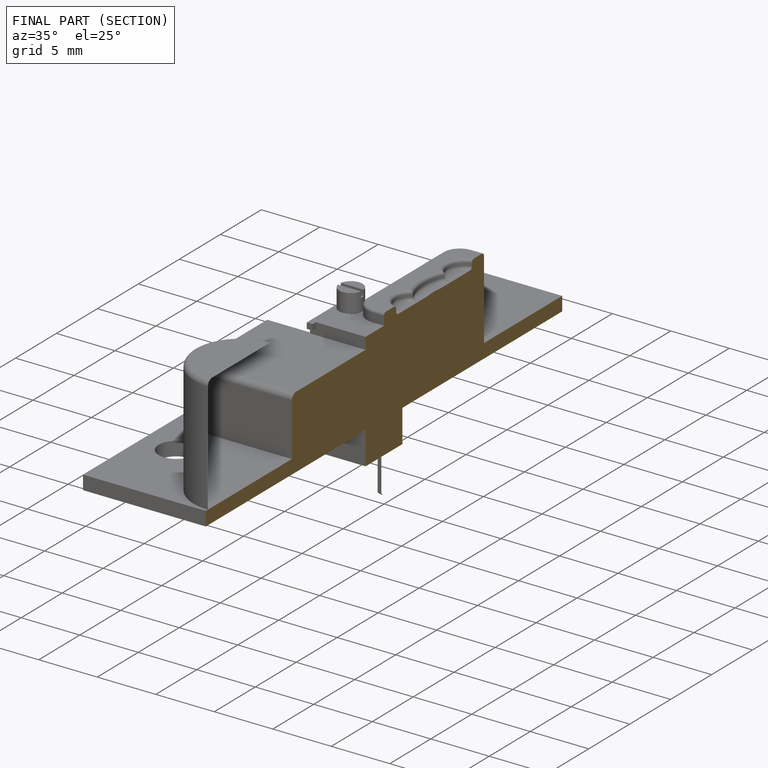
[diagram: finished part — half-section view (interior)]
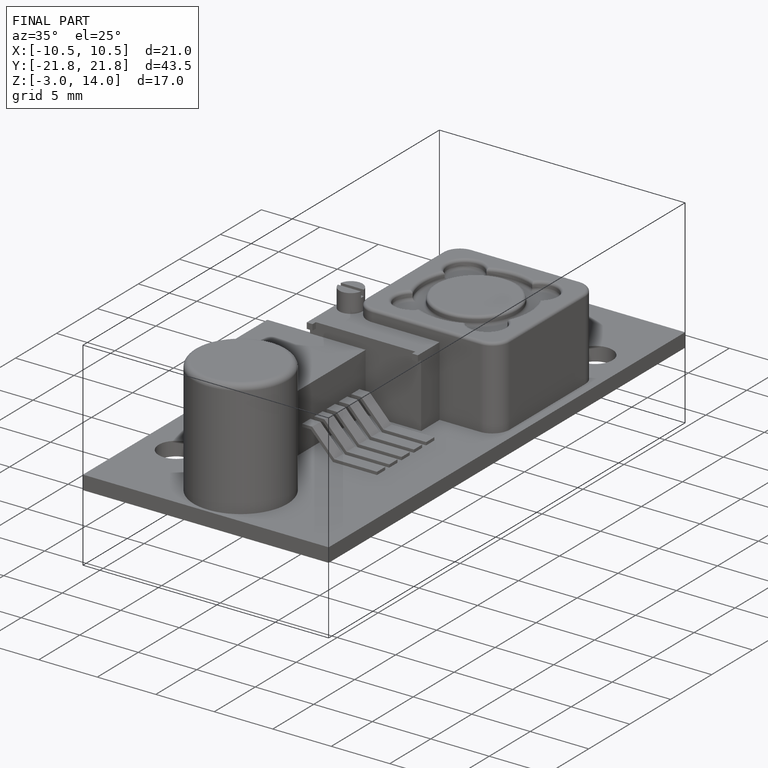
[diagram: finished part — iso view with bounding-box wireframe]
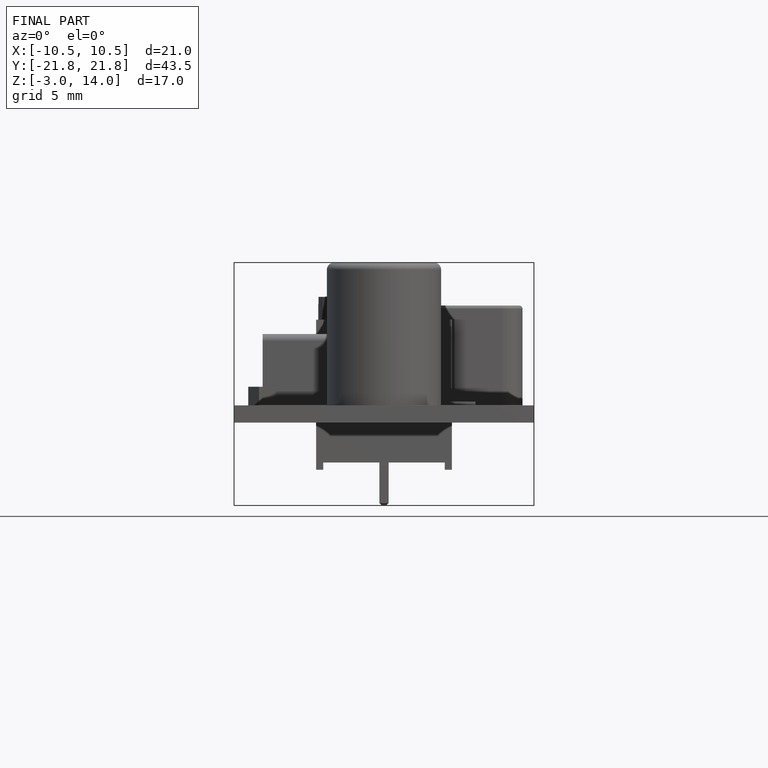
[diagram: finished part — front view with bounding-box wireframe]
